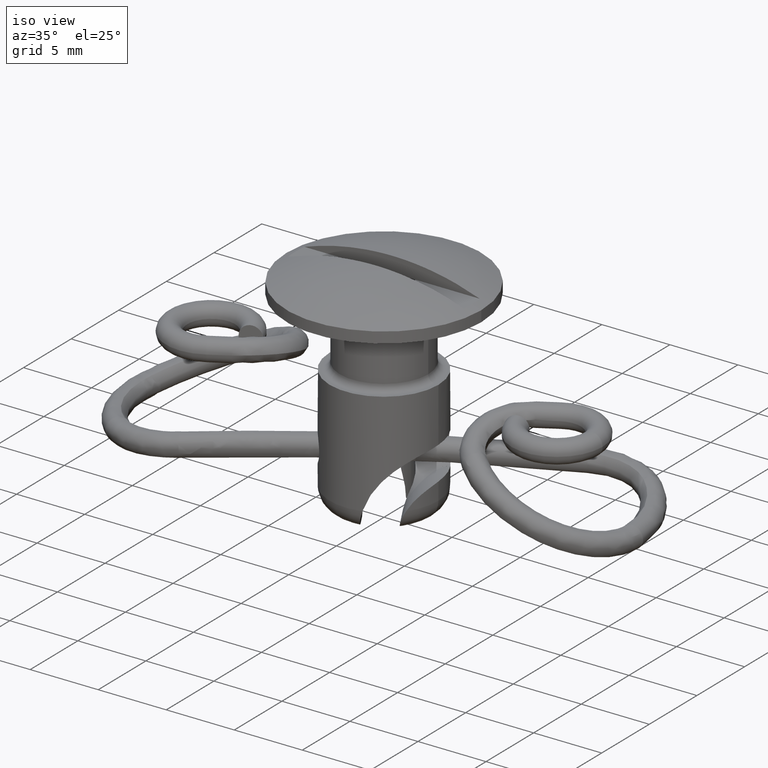
[diagram: clean part render]
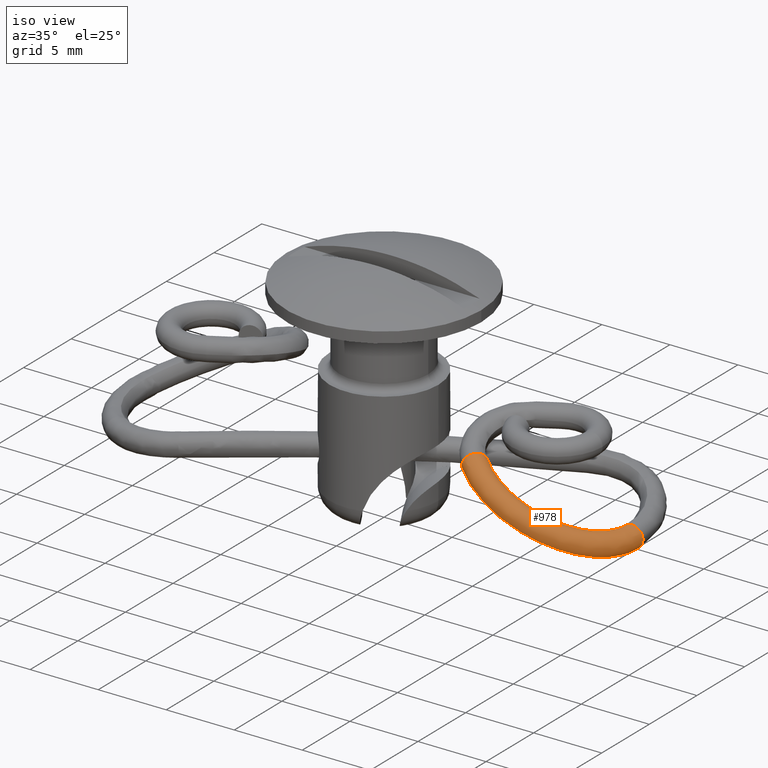
[diagram: same view with one face highlighted and labeled with its STEP entity id]
A machine part, iso view. The second image highlights one B-rep face of the part: STEP entity #978.
In plain terms, the highlighted face is a freeform B-spline surface patch.
Its self-contained STEP definition (entity closure, byte-faithful):
#14 = ORIENTED_EDGE ( 'NONE', *, *, #5541, .T. ) ;
#24 = CARTESIAN_POINT ( 'NONE',  ( 8.780062192003130800, -4.317727865166364900, 2.568071499838299900 ) ) ;
#75 = CARTESIAN_POINT ( 'NONE',  ( 8.781649363514839400, -4.519845964994680700, 2.934957569900285000 ) ) ;
#102 = CARTESIAN_POINT ( 'NONE',  ( 18.11631761478035000, -2.795201206161194800, -1.466738790936256100 ) ) ;
#108 = CARTESIAN_POINT ( 'NONE',  ( 11.58827637995463000, -4.430807974684300100, 2.503462905728892600 ) ) ;
#111 = ORIENTED_EDGE ( 'NONE', *, *, #2562, .F. ) ;
#131 = CARTESIAN_POINT ( 'NONE',  ( 9.436831021696889400, -5.043202281176259100, 2.866666053095930300 ) ) ;
#157 = CARTESIAN_POINT ( 'NONE',  ( 18.88812881465965200, -0.5715307264622360200, -1.590026137846705100 ) ) ;
#189 = CARTESIAN_POINT ( 'NONE',  ( 11.69165942749405900, -5.931369774369089900, 2.262520835116689900 ) ) ;
#223 = CARTESIAN_POINT ( 'NONE',  ( 19.03496547813765400, 0.2173288944170520000, -1.200162856425685900 ) ) ;
#232 = CARTESIAN_POINT ( 'NONE',  ( 9.564184269184053700, -4.325703299260036200, 3.717064570470343100 ) ) ;
#255 = CARTESIAN_POINT ( 'NONE',  ( 17.47219626882215200, -4.170547358197150200, -0.2476289060670410200 ) ) ;
#271 = CARTESIAN_POINT ( 'NONE',  ( 17.77303844508919900, -2.669064995074965200, -1.672502431744574900 ) ) ;
#285 = CARTESIAN_POINT ( 'NONE',  ( 9.827491460989390900, -4.457881071612675300, 3.638812515008940100 ) ) ;
#286 = CARTESIAN_POINT ( 'NONE',  ( 10.07893380206260900, -5.312875357627859800, 2.139415083463025000 ) ) ;
#289 = CARTESIAN_POINT ( 'NONE',  ( 9.025699226951383400, -4.677013981602360800, 3.135600348002081100 ) ) ;
#308 = CARTESIAN_POINT ( 'NONE',  ( 9.362599510556791000, -4.886075817539535600, 2.477197419073545100 ) ) ;
#321 = CARTESIAN_POINT ( 'NONE',  ( 18.73129203574779900, -1.050933361514329900, -0.5597112602968019600 ) ) ;
#326 = VERTEX_POINT ( 'NONE', #8020 ) ;
#332 = CARTESIAN_POINT ( 'NONE',  ( 13.45150496205429900, -4.866893238254649000, 1.808687976818500000 ) ) ;
#341 = CARTESIAN_POINT ( 'NONE',  ( 18.55725133654912500, -0.5524658281846465100, -1.858475193194117500 ) ) ;
#353 = CARTESIAN_POINT ( 'NONE',  ( 11.53630134593819900, -5.139438598345240200, 2.897315151924699800 ) ) ;
#362 = CARTESIAN_POINT ( 'NONE',  ( 9.894275310618320800, -3.309946215111129900, 3.118439805718785000 ) ) ;
#382 = CARTESIAN_POINT ( 'NONE',  ( 18.65205121670135200, 0.1487088313577580000, -0.4580660429573820100 ) ) ;
#391 = CARTESIAN_POINT ( 'NONE',  ( 17.18354352182745300, -2.040140177454124800, -0.3187627273318799900 ) ) ;
#417 = CARTESIAN_POINT ( 'NONE',  ( 16.22404656080150100, -4.111535510048384800, 0.6260316514131198900 ) ) ;
#427 = CARTESIAN_POINT ( 'NONE',  ( 10.31625565839882000, -3.653134486922585000, 2.678803246874720000 ) ) ;
#447 = CARTESIAN_POINT ( 'NONE',  ( 9.993659699574669400, -3.595008961993019900, 3.439210294108335100 ) ) ;
#456 = CARTESIAN_POINT ( 'NONE',  ( 17.49706121835645300, -0.4028710524477210300, -0.7072544951175380200 ) ) ;
#484 = CARTESIAN_POINT ( 'NONE',  ( 11.71131850759872100, -4.427533768981375000, 1.561868226957600100 ) ) ;
#513 = CARTESIAN_POINT ( 'NONE',  ( 17.38335823972329700, 0.2140562158000570100, -1.112741729750788000 ) ) ;
#523 = CARTESIAN_POINT ( 'NONE',  ( 16.16204646136692300, -4.920299139859555000, -0.7290333856503243800 ) ) ;
#543 = CARTESIAN_POINT ( 'NONE',  ( 16.20759369619960200, -3.208556896393495200, -0.7739395844471680400 ) ) ;
#563 = ORIENTED_EDGE ( 'NONE', *, *, #3483, .F. ) ;
#573 = CARTESIAN_POINT ( 'NONE',  ( 9.519053263266110700, -3.940631327956044300, 2.098358750086690300 ) ) ;
#600 = CARTESIAN_POINT ( 'NONE',  ( 17.51322128121735100, -0.9190317077442200500, -1.671234268685970000 ) ) ;
#629 = CARTESIAN_POINT ( 'NONE',  ( 10.89042963334027900, -4.942350280436048800, 1.387416212310760100 ) ) ;
#648 = VERTEX_POINT ( 'NONE', #4636 ) ;
#660 = CARTESIAN_POINT ( 'NONE',  ( 17.76653015966060100, 0.1493433068229064200, -1.854960040251084900 ) ) ;
#689 = CARTESIAN_POINT ( 'NONE',  ( 15.88245853123685200, -4.645180474620319800, -0.9057288602110750200 ) ) ;
#773 = CARTESIAN_POINT ( 'NONE',  ( 8.874165058154851200, -4.598312204465650600, 2.891332452707484600 ) ) ;
#800 = CARTESIAN_POINT ( 'NONE',  ( 18.60022156354995100, -1.427047051748896000, -1.694920253089235100 ) ) ;
#806 = CARTESIAN_POINT ( 'NONE',  ( 13.37489291541675000, -4.737806591850224800, 1.660996597268407500 ) ) ;
#833 = CARTESIAN_POINT ( 'NONE',  ( 10.17312869136646100, -5.481893865752599700, 2.519470128630655100 ) ) ;
#865 = CARTESIAN_POINT ( 'NONE',  ( 18.90785785832205300, 0.08981964600797288900, -1.599329227935805100 ) ) ;
#899 = CARTESIAN_POINT ( 'NONE',  ( 14.51793191932220000, -5.983439189764760100, 0.9298121616929939700 ) ) ;
#929 = CARTESIAN_POINT ( 'NONE',  ( 9.245026025258679800, -4.475136692227595200, 3.631834653461460100 ) ) ;
#935 = CARTESIAN_POINT ( 'NONE',  ( 9.861286593745306900, -3.946338249192048700, 3.676323621299574500 ) ) ;
#949 = CARTESIAN_POINT ( 'NONE',  ( 8.873637135294542200, -4.397092286431814900, 2.523946901484639800 ) ) ;
#961 = CARTESIAN_POINT ( 'NONE',  ( 18.61913621210095100, -2.219084832757709500, -0.7884602713102890600 ) ) ;
#962 = CARTESIAN_POINT ( 'NONE',  ( 8.830683068544505700, -4.461045189560164400, 2.728018830617427800 ) ) ;
#978 = ADVANCED_FACE ( 'NONE', ( #3362 ), #6895, .F. ) ;
#980 = CARTESIAN_POINT ( 'NONE',  ( 18.23539739839199900, -1.361668929736952000, -1.890524504663940100 ) ) ;
#994 = CARTESIAN_POINT ( 'NONE',  ( 10.49560772450319800, -4.901239438538420100, 3.323767047236100100 ) ) ;
#995 = CARTESIAN_POINT ( 'NONE',  ( 11.37521486906975800, -5.803192151850284500, 1.528162974477281800 ) ) ;
#998 = CARTESIAN_POINT ( 'NONE',  ( 8.946154350915504600, -4.629538728413591800, 2.856882230685030300 ) ) ;
#1013 = CARTESIAN_POINT ( 'NONE',  ( 10.07893380206260900, -5.312875357627859800, 2.139415083463025000 ) ) ;
#1027 = CARTESIAN_POINT ( 'NONE',  ( 18.82487832302294700, -0.2435431176839470100, -0.6038412078246989700 ) ) ;
#1035 = CARTESIAN_POINT ( 'NONE',  ( 16.07880370441879900, -3.945107489066964800, 0.5698039584667230500 ) ) ;
#1045 = CARTESIAN_POINT ( 'NONE',  ( 18.57632441827422600, 0.08813353473651099100, -1.867468969101574900 ) ) ;
#1056 = CARTESIAN_POINT ( 'NONE',  ( 13.55039402762180100, -5.485408729713230800, 1.947584086105385000 ) ) ;
#1069 = CARTESIAN_POINT ( 'NONE',  ( 9.993131776714479400, -3.393789043959170000, 3.071824742885454800 ) ) ;
#1090 = CARTESIAN_POINT ( 'NONE',  ( 9.836610082201691100, -3.666806934585699700, 3.637981851049390000 ) ) ;
#1100 = CARTESIAN_POINT ( 'NONE',  ( 17.53847765160034600, -1.035689961781412100, -0.4861293894672760200 ) ) ;
#1121 = CARTESIAN_POINT ( 'NONE',  ( 17.72917119510819700, -2.262846718736249800, -0.08369915498410959700 ) ) ;
#1131 = CARTESIAN_POINT ( 'NONE',  ( 10.87594117224710100, -3.986620003151799500, 2.414887527193870100 ) ) ;
#1135 = CARTESIAN_POINT ( 'NONE',  ( 18.85333197097999800, 0.03759310922161381000, -1.659455252631069100 ) ) ;
#1152 = CARTESIAN_POINT ( 'NONE',  ( 10.39993736252580100, -3.918142314914464700, 3.247632954414494800 ) ) ;
#1161 = CARTESIAN_POINT ( 'NONE',  ( 17.51098746618039900, 0.07489934514568008500, -0.7138213181390390400 ) ) ;
#1192 = CARTESIAN_POINT ( 'NONE',  ( 13.94136800646070100, -4.466624897933460400, 0.5103042613842180300 ) ) ;
#1219 = CARTESIAN_POINT ( 'NONE',  ( 9.526586801268921400, -3.435808128220319400, 2.376441655095284900 ) ) ;
#1226 = CARTESIAN_POINT ( 'NONE',  ( 17.94467802993477400, -2.732133100618080200, -1.569620611340415600 ) ) ;
#1247 = CARTESIAN_POINT ( 'NONE',  ( 17.09897446999989900, -1.691827348828850000, -1.194263842635901800 ) ) ;
#1279 = CARTESIAN_POINT ( 'NONE',  ( 10.10875844442312000, -4.330104150870215400, 1.820287469994804800 ) ) ;
#1305 = CARTESIAN_POINT ( 'NONE',  ( 17.59516673389165200, -0.2281081711564125200, -1.709875063529134900 ) ) ;
#1307 = VERTEX_POINT ( 'NONE', #4676 ) ;
#1336 = CARTESIAN_POINT ( 'NONE',  ( 12.84125530402391900, -5.277480880905120100, 0.4675182551332839900 ) ) ;
#1366 = CARTESIAN_POINT ( 'NONE',  ( 8.839314591931460200, -4.162985245520105500, 2.415415524569684900 ) ) ;
#1395 = CARTESIAN_POINT ( 'NONE',  ( 17.57068994149959800, -2.572494664879069400, -1.701802363284030000 ) ) ;
#1478 = CARTESIAN_POINT ( 'NONE',  ( 9.372049703543210000, -4.993957181894630900, 2.656558492591055000 ) ) ;
#1509 = CARTESIAN_POINT ( 'NONE',  ( 18.74291177894164700, -0.5655554815375699600, -1.762204808352160000 ) ) ;
#1514 = CARTESIAN_POINT ( 'NONE',  ( 15.94445863067052500, -3.836416844809859700, 0.4493361768521345100 ) ) ;
#1542 = CARTESIAN_POINT ( 'NONE',  ( 11.50426603408702100, -5.985391227582139700, 1.891781790971915000 ) ) ;
#1569 = CARTESIAN_POINT ( 'NONE',  ( 18.90760755028710000, 0.2174468964387579800, -1.599211196963874900 ) ) ;
#1599 = CARTESIAN_POINT ( 'NONE',  ( 17.46086472755805000, -4.253667126265785500, -0.4579068534351379800 ) ) ;
#1627 = CARTESIAN_POINT ( 'NONE',  ( 9.541333371743011300, -4.726417156071340400, 3.492113033624680200 ) ) ;
#1639 = CARTESIAN_POINT ( 'NONE',  ( 10.02473979802025600, -3.598503765916280600, 3.382692751455009400 ) ) ;
#1653 = CARTESIAN_POINT ( 'NONE',  ( 9.353149317570368400, -4.778194453184440200, 2.297836345556035100 ) ) ;
#1665 = CARTESIAN_POINT ( 'NONE',  ( 18.91737836621490100, -1.119410416433910000, -0.9290942359116890500 ) ) ;
#1682 = CARTESIAN_POINT ( 'NONE',  ( 18.37159089415660100, -0.5393761748317230700, -1.954745578036075200 ) ) ;
#1693 = CARTESIAN_POINT ( 'NONE',  ( 11.45412345070425900, -5.348545371506800100, 2.871785780172705100 ) ) ;
#1694 = CARTESIAN_POINT ( 'NONE',  ( 14.15066896768294800, -5.854155055018175300, 0.2194173526002168600 ) ) ;
#1697 = CARTESIAN_POINT ( 'NONE',  ( 8.935824082008970500, -4.550186272890416100, 2.678440334212210500 ) ) ;
#1715 = CARTESIAN_POINT ( 'NONE',  ( 11.37521486906975800, -5.803192151850284500, 1.528162974477281800 ) ) ;
#1728 = CARTESIAN_POINT ( 'NONE',  ( 18.82413428035395200, 0.1480374744727743800, -0.6034903598007860200 ) ) ;
#1737 = CARTESIAN_POINT ( 'NONE',  ( 17.52682269151949900, -2.166276388540805600, -0.1129990865231149900 ) ) ;
#1747 = CARTESIAN_POINT ( 'NONE',  ( 18.57607174013603000, 0.2170507004630085100, -1.867349820524445000 ) ) ;
#1762 = CARTESIAN_POINT ( 'NONE',  ( 16.45431907199070000, -4.465895716413299100, 0.5782589043329029500 ) ) ;
#1773 = CARTESIAN_POINT ( 'NONE',  ( 10.38103697655295900, -3.702379586204219900, 2.888910807379710300 ) ) ;
#1794 = CARTESIAN_POINT ( 'NONE',  ( 9.933596333625441600, -3.749063930242645200, 3.592248674630855300 ) ) ;
#1804 = CARTESIAN_POINT ( 'NONE',  ( 17.64227825407400400, -0.4088462973724970000, -0.5350758246116490400 ) ) ;
#1825 = CARTESIAN_POINT ( 'NONE',  ( 18.12214523577080200, -1.151121732397420100, -0.2690032662950779800 ) ) ;
#1837 = CARTESIAN_POINT ( 'NONE',  ( 11.89871190100525800, -4.373512315767845500, 1.932607271102135100 ) ) ;
#1840 = CARTESIAN_POINT ( 'NONE',  ( 19.02609183918544400, 0.04109782329686984000, -1.175164811744260800 ) ) ;
#1855 = CARTESIAN_POINT ( 'NONE',  ( 10.99329289741040000, -4.271684811738859700, 2.967840376009100100 ) ) ;
#1864 = CARTESIAN_POINT ( 'NONE',  ( 17.51071616757385000, 0.2139382137783514800, -0.7136933892126030600 ) ) ;
#1896 = CARTESIAN_POINT ( 'NONE',  ( 16.21892523746550200, -3.125437128325304800, -0.5636616370781699600 ) ) ;
#1923 = CARTESIAN_POINT ( 'NONE',  ( 9.805211352512500900, -3.672095243497210100, 2.245058231471179800 ) ) ;
#1932 = CARTESIAN_POINT ( 'NONE',  ( 18.41780948097097300, -1.394357990742924000, -1.792722378876587600 ) ) ;
#1956 = CARTESIAN_POINT ( 'NONE',  ( 17.32713495075019900, -0.8505546528247489600, -1.301851293070861900 ) ) ;
#1984 = CARTESIAN_POINT ( 'NONE',  ( 10.97260752857421900, -4.733243507274730500, 1.412945584062517800 ) ) ;
#2010 = CARTESIAN_POINT ( 'NONE',  ( 17.59444709600800000, 0.1500146637079115000, -1.709535723407684900 ) ) ;
#2035 = CARTESIAN_POINT ( 'NONE',  ( 15.65218602004764900, -4.290820268255399300, -0.8579561131303820000 ) ) ;
#2064 = CARTESIAN_POINT ( 'NONE',  ( 8.933700501243780700, -4.243037318182175900, 2.370908520962120100 ) ) ;
#2096 = CARTESIAN_POINT ( 'NONE',  ( 18.01655397937905100, -1.311615281132890100, -1.912046376261434800 ) ) ;
#2152 = CARTESIAN_POINT ( 'NONE',  ( 18.41780948097097300, -1.394357990742924000, -1.792722378876587600 ) ) ;
#2180 = CARTESIAN_POINT ( 'NONE',  ( 10.10209063792159900, -5.428921658090059700, 2.312312887110745200 ) ) ;
#2209 = CARTESIAN_POINT ( 'NONE',  ( 18.76243522707054700, 0.08929129806816078800, -1.771410951331025000 ) ) ;
#2214 = CARTESIAN_POINT ( 'NONE',  ( 17.35518310667347600, -2.103208282997465400, -0.2158809069274975100 ) ) ;
#2236 = CARTESIAN_POINT ( 'NONE',  ( 14.35195627577102200, -6.037926664592260000, 0.5489737300752569600 ) ) ;
#2265 = CARTESIAN_POINT ( 'NONE',  ( 9.100099568797201500, -4.564939166112520000, 3.484552437297465200 ) ) ;
#2299 = CARTESIAN_POINT ( 'NONE',  ( 18.62988595808520000, -2.264641805980114800, -1.009150492486458300 ) ) ;
#2331 = CARTESIAN_POINT ( 'NONE',  ( 10.25015762597222000, -5.197750608867240300, 3.157872002628099800 ) ) ;
#2350 = CARTESIAN_POINT ( 'NONE',  ( 10.05577696620362000, -5.196829057165659900, 1.966517279815304800 ) ) ;
#2361 = CARTESIAN_POINT ( 'NONE',  ( 19.01700793829284900, -0.2515552761088120100, -0.9760738513671930500 ) ) ;
#2365 = CARTESIAN_POINT ( 'NONE',  ( 9.068945223167769900, -4.669412517897339600, 3.222273710223130000 ) ) ;
#2381 = CARTESIAN_POINT ( 'NONE',  ( 18.39021360947790000, 0.08697577140486119400, -1.963526986872125000 ) ) ;
#2393 = CARTESIAN_POINT ( 'NONE',  ( 13.53534108608536000, -5.706015383758249900, 1.890402420296714900 ) ) ;
#2394 = CARTESIAN_POINT ( 'NONE',  ( 17.03688906193669800, -4.157503178618087600, -1.141559185985394200 ) ) ;
#2416 = CARTESIAN_POINT ( 'NONE',  ( 14.15066896768294800, -5.854155055018175300, 0.2194173526002168600 ) ) ;
#2428 = CARTESIAN_POINT ( 'NONE',  ( 9.631469113016880400, -3.996286676008984800, 3.795525230950620000 ) ) ;
#2438 = CARTESIAN_POINT ( 'NONE',  ( 17.90330181675830100, -1.101068083793574000, -0.2905251378927920500 ) ) ;
#2458 = CARTESIAN_POINT ( 'NONE',  ( 18.08103359619969900, -2.468465128181485100, -0.1888067490565349900 ) ) ;
#2468 = CARTESIAN_POINT ( 'NONE',  ( 10.94697922569220000, -4.039592210814345400, 2.622044768713539800 ) ) ;
#2493 = CARTESIAN_POINT ( 'NONE',  ( 10.35394004492970100, -4.083331313553064700, 3.394038589971615200 ) ) ;
#2503 = CARTESIAN_POINT ( 'NONE',  ( 17.65641009743205500, 0.07542769308549220100, -0.5417395947437619900 ) ) ;
#2525 = CARTESIAN_POINT ( 'NONE',  ( 18.23741645603495000, -0.4550684580682560200, -0.3233585896000745200 ) ) ;
#2536 = CARTESIAN_POINT ( 'NONE',  ( 14.10734365001092000, -4.412137423106425000, 0.8911426930024299900 ) ) ;
#2540 = CARTESIAN_POINT ( 'NONE',  ( 18.87591878499531400, 0.03455359538997644600, -0.6833617208777736900 ) ) ;
#2562 = EDGE_CURVE ( 'NONE', #648, #3708, #8315, .T. ) ;
#2566 = CARTESIAN_POINT ( 'NONE',  ( 9.671513257730488500, -3.346005654335375100, 2.523723871259244700 ) ) ;
#2598 = CARTESIAN_POINT ( 'NONE',  ( 17.08822472401565000, -1.646270375606665000, -0.9735736214601740100 ) ) ;
#2606 = CARTESIAN_POINT ( 'NONE',  ( 9.367020464560521700, -4.888854269836566700, 2.475112749685645800 ) ) ;
#2625 = CARTESIAN_POINT ( 'NONE',  ( 10.35420854295410100, -4.033592980541520500, 1.986182514602800000 ) ) ;
#2634 = CARTESIAN_POINT ( 'NONE',  ( 18.55725133654912500, -0.5524658281846465100, -1.858475193194117500 ) ) ;
#2658 = CARTESIAN_POINT ( 'NONE',  ( 17.40303711862174700, -0.2200960127316020100, -1.337642419986858000 ) ) ;
#2685 = CARTESIAN_POINT ( 'NONE',  ( 12.85630824556035800, -5.056874226860579700, 0.5246999209419539500 ) ) ;
#2717 = CARTESIAN_POINT ( 'NONE',  ( 9.044455561116279800, -3.833505504096820000, 2.257872144668450000 ) ) ;
#2747 = CARTESIAN_POINT ( 'NONE',  ( 17.21882754040810000, -2.366876255433834500, -1.596694769210700100 ) ) ;
#2782 = CARTESIAN_POINT ( 'NONE',  ( 9.399146635166250300, -4.613005454545719500, 2.151430709999029700 ) ) ;
#2807 = CARTESIAN_POINT ( 'NONE',  ( 18.14777357698070000, -0.5193333208418109400, -1.973922043363955000 ) ) ;
#2849 = EDGE_CURVE ( 'NONE', #6100, #648, #4107, .T. ) ;
#2862 = CARTESIAN_POINT ( 'NONE',  ( 18.55725133654912500, -0.5524658281846465100, -1.858475193194117500 ) ) ;
#2888 = CARTESIAN_POINT ( 'NONE',  ( 11.42230364906131800, -5.928288065628939800, 1.689775840239690100 ) ) ;
#2893 = CARTESIAN_POINT ( 'NONE',  ( 10.03471448536588500, -3.529438264463209400, 3.236033957390875000 ) ) ;
#2907 = CARTESIAN_POINT ( 'NONE',  ( 18.13976918009843000, 0.01046291130278924900, -0.3459945026737674700 ) ) ;
#2918 = CARTESIAN_POINT ( 'NONE',  ( 18.76218417683410100, 0.2173228220556049900, -1.771292570379385100 ) ) ;
#2923 = CARTESIAN_POINT ( 'NONE',  ( 17.72088973417932700, -1.068379022787493200, -0.3883272636800340100 ) ) ;
#2944 = CARTESIAN_POINT ( 'NONE',  ( 17.31879085470370000, -4.294195518792555800, -0.8500159948700659600 ) ) ;
#2975 = CARTESIAN_POINT ( 'NONE',  ( 9.397934785802441100, -4.817515112260239500, 3.344110360993264800 ) ) ;
#3000 = CARTESIAN_POINT ( 'NONE',  ( 18.93418340876809900, -1.142640391826176000, -1.152639789077382100 ) ) ;
#3034 = CARTESIAN_POINT ( 'NONE',  ( 11.25782056757650000, -5.667985897436150100, 2.682715716017735300 ) ) ;
#3056 = CARTESIAN_POINT ( 'NONE',  ( 11.32812608907820000, -5.678096238071630000, 1.366550108714873900 ) ) ;
#3068 = CARTESIAN_POINT ( 'NONE',  ( 19.01625120069410000, 0.1470120475372337900, -0.9757170171392259800 ) ) ;
#3086 = CARTESIAN_POINT ( 'NONE',  ( 18.38995930343795100, 0.2167785788704120200, -1.963407070669504800 ) ) ;
#3099 = CARTESIAN_POINT ( 'NONE',  ( 16.53793074719260000, -4.651645810923029400, 0.4745526408889340100 ) ) ;
#3120 = CARTESIAN_POINT ( 'NONE',  ( 17.03688906193669800, -4.157503178618087600, -1.141559185985394200 ) ) ;
#3131 = CARTESIAN_POINT ( 'NONE',  ( 9.726728646387998700, -4.077079517868364500, 3.750606276137354600 ) ) ;
#3142 = CARTESIAN_POINT ( 'NONE',  ( 18.01359913885904600, -0.4350256040784539800, -0.3425350549277340100 ) ) ;
#3161 = CARTESIAN_POINT ( 'NONE',  ( 18.50912874574029800, -1.257696312268856000, -0.3906719692336040300 ) ) ;
#3175 = CARTESIAN_POINT ( 'NONE',  ( 11.98067428603194200, -4.430615477721289600, 2.134613221834840100 ) ) ;
#3198 = CARTESIAN_POINT ( 'NONE',  ( 10.96828332384029800, -4.449376017589494300, 3.104349390281385000 ) ) ;
#3208 = CARTESIAN_POINT ( 'NONE',  ( 17.65613954102685000, 0.2140622881615044900, -0.5416120157970929500 ) ) ;
#3228 = CARTESIAN_POINT ( 'NONE',  ( 18.25313862291140100, 0.07951613984645369800, -0.3307722654655179700 ) ) ;
#3236 = CARTESIAN_POINT ( 'NONE',  ( 16.36099911031984900, -3.084908735798539900, -0.1715524956432419900 ) ) ;
#3240 = CARTESIAN_POINT ( 'NONE',  ( 18.46180613581712000, 0.02054402708922505700, -0.3785009610710362000 ) ) ;
#3264 = CARTESIAN_POINT ( 'NONE',  ( 9.948609938453289600, -3.580997287308475200, 2.393060904102365200 ) ) ;
#3295 = CARTESIAN_POINT ( 'NONE',  ( 17.31032990819790000, -0.8273246774324849500, -1.078305739905389900 ) ) ;
#3304 = CARTESIAN_POINT ( 'NONE',  ( 10.07893380206260900, -5.312875357627859800, 2.139415083463025000 ) ) ;
#3325 = CARTESIAN_POINT ( 'NONE',  ( 11.16891041170196000, -4.413802981345145100, 1.602015648217015100 ) ) ;
#3332 = CARTESIAN_POINT ( 'NONE',  ( 18.57645014878133000, 0.02134302443070191700, -1.867528256427239500 ) ) ;
#3356 = CARTESIAN_POINT ( 'NONE',  ( 17.40233017566785300, 0.1510400906434410100, -1.337309066069241900 ) ) ;
#3362 = FACE_OUTER_BOUND ( 'NONE', #5007, .T. ) ;
#3384 = CARTESIAN_POINT ( 'NONE',  ( 15.56857434484485100, -4.105070173746620200, -0.7542498496873619700 ) ) ;
#3415 = CARTESIAN_POINT ( 'NONE',  ( 9.140568188481159600, -3.915021730556455200, 2.212550919455615000 ) ) ;
#3439 = CARTESIAN_POINT ( 'NONE',  ( 17.62957046940994800, -1.205040701261562000, -1.790377673322685000 ) ) ;
#3468 = CARTESIAN_POINT ( 'NONE',  ( 10.08078653977350000, -5.019137851315029800, 1.830008265543140000 ) ) ;
#3483 = EDGE_CURVE ( 'NONE', #3708, #5459, #4783, .T. ) ;
#3498 = CARTESIAN_POINT ( 'NONE',  ( 18.16570670159104800, 0.08520285130719940100, -1.982378280609210300 ) ) ;
#3551 = CARTESIAN_POINT ( 'NONE',  ( 18.57632441827422600, 0.08813353473651099100, -1.867468969101574900 ) ) ;
#3582 = CARTESIAN_POINT ( 'NONE',  ( 14.24735429455626000, -5.980330611251440100, 0.3576433197557860000 ) ) ;
#3587 = CARTESIAN_POINT ( 'NONE',  ( 10.39048716953938000, -3.810260950559342300, 3.068271880897102600 ) ) ;
#3612 = CARTESIAN_POINT ( 'NONE',  ( 8.892885763874430100, -4.608726421520599600, 3.123159567102579800 ) ) ;
#3616 = CARTESIAN_POINT ( 'NONE',  ( 17.82739948159164800, -0.4257519441569476700, -0.4385511768340971700 ) ) ;
#3641 = CARTESIAN_POINT ( 'NONE',  ( 18.49857866997734800, -2.286854772231174900, -1.406336540310590100 ) ) ;
#3674 = CARTESIAN_POINT ( 'NONE',  ( 10.12056878321888000, -5.298338788264129700, 3.003357443907690000 ) ) ;
#3704 = CARTESIAN_POINT ( 'NONE',  ( 19.03586308032579700, -0.2542732030045520300, -1.200586114347995900 ) ) ;
#3708 = VERTEX_POINT ( 'NONE', #4769 ) ;
#3714 = CARTESIAN_POINT ( 'NONE',  ( 9.140063730138708200, -4.656829187535846500, 3.365008833423170000 ) ) ;
#3736 = CARTESIAN_POINT ( 'NONE',  ( 13.44158116984965900, -6.043023564254549600, 1.652978950102225000 ) ) ;
#3755 = CARTESIAN_POINT ( 'NONE',  ( 14.05398364080964100, -5.727979498784910600, 0.08119138544464769800 ) ) ;
#3768 = CARTESIAN_POINT ( 'NONE',  ( 9.486843767531681200, -4.168994916655270400, 3.799442509804415100 ) ) ;
#3769 = CARTESIAN_POINT ( 'NONE',  ( 9.126750669215967400, -4.712122342666390300, 2.588410261211799800 ) ) ;
#3789 = CARTESIAN_POINT ( 'NONE',  ( 8.830683068544505700, -4.461045189560164400, 2.728018830617427800 ) ) ;
#3803 = CARTESIAN_POINT ( 'NONE',  ( 18.22838078389820300, -2.576247043663360000, -0.3225670396868040600 ) ) ;
#3820 = CARTESIAN_POINT ( 'NONE',  ( 18.18036361971190100, -2.211934920100380200, -1.680756473365027500 ) ) ;
#3833 = CARTESIAN_POINT ( 'NONE',  ( 10.17702194674974000, -4.435053582031554400, 3.538273675967640300 ) ) ;
#3844 = CARTESIAN_POINT ( 'NONE',  ( 18.02863171502454900, 0.07774321974880640800, -0.3496235592026629700 ) ) ;
#3865 = CARTESIAN_POINT ( 'NONE',  ( 18.63499041687964900, -0.4977437302619700500, -0.4500211442563260000 ) ) ;
#3873 = CARTESIAN_POINT ( 'NONE',  ( 14.21194563122664100, -4.469733476446294600, 1.082473103321426100 ) ) ;
#3892 = CARTESIAN_POINT ( 'NONE',  ( 12.08648709131088100, -4.872355331462220100, 2.577068364167969700 ) ) ;
#3904 = CARTESIAN_POINT ( 'NONE',  ( 9.878727062653229800, -3.302218398927365200, 2.885116741454140300 ) ) ;
#3923 = CARTESIAN_POINT ( 'NONE',  ( 18.25287381586335300, 0.2150233487902459800, -0.3306473975873134900 ) ) ;
#3931 = CARTESIAN_POINT ( 'NONE',  ( 17.21953201212259900, -1.624057409355605100, -0.5763875736360419800 ) ) ;
#3964 = CARTESIAN_POINT ( 'NONE',  ( 10.48379738570768000, -3.933004801144800200, 2.140697073322980000 ) ) ;
#3993 = CARTESIAN_POINT ( 'NONE',  ( 17.38418197658879900, -0.2173780858359164700, -1.113130157005836100 ) ) ;
#4000 = CARTESIAN_POINT ( 'NONE',  ( 11.37521486906975800, -5.803192151850284500, 1.528162974477281800 ) ) ;
#4023 = CARTESIAN_POINT ( 'NONE',  ( 12.95006816179704000, -4.719866046364270300, 0.7621233911369270600 ) ) ;
#4031 = CARTESIAN_POINT ( 'NONE',  ( 18.57643450339310900, 0.02979900296597102700, -1.867520541527739800 ) ) ;
#4052 = CARTESIAN_POINT ( 'NONE',  ( 9.189080906601470000, -3.660797263450535200, 2.253954865814659800 ) ) ;
#4080 = CARTESIAN_POINT ( 'NONE',  ( 17.07148035271049800, -2.259094339952409900, -1.462934478579984000 ) ) ;
#4107 = B_SPLINE_CURVE_WITH_KNOTS ( 'NONE', 3,
 ( #7902, #3714, #8611, #4413, #232, #5109, #935, #5799, #1639, #6510 ),
 .UNSPECIFIED., .F., .F.,
 ( 4, 2, 2, 2, 4 ),
 ( -4.714034727685035600E-005, 0.0004325374260194657800, 0.0009122151993157819400, 0.001391892972612098100, 0.001871570745908414400 ),
 .UNSPECIFIED. ) ;
#4110 = CARTESIAN_POINT ( 'NONE',  ( 9.576064733345969400, -4.261283186067350600, 2.007195624003125000 ) ) ;
#4139 = CARTESIAN_POINT ( 'NONE',  ( 17.75019961613555000, -0.4766580486480969700, -1.847259488707699800 ) ) ;
#4151 = ORIENTED_EDGE ( 'NONE', *, *, #7225, .T. ) ;
#4174 = CARTESIAN_POINT ( 'NONE',  ( 11.31649084378142000, -5.486548211888009300, 1.247320697906321800 ) ) ;
#4202 = CARTESIAN_POINT ( 'NONE',  ( 18.16544990199764700, 0.2163617614268635000, -1.982257188589159800 ) ) ;
#4256 = CARTESIAN_POINT ( 'NONE',  ( 18.57607174013603000, 0.2170507004630085100, -1.867349820524445000 ) ) ;
#4286 = CARTESIAN_POINT ( 'NONE',  ( 17.18892339025664700, -4.251354576188729700, -1.029432646434178100 ) ) ;
#4290 = CARTESIAN_POINT ( 'NONE',  ( 10.97013606155130100, -4.155638511276602100, 2.794942572361319900 ) ) ;
#4312 = CARTESIAN_POINT ( 'NONE',  ( 9.191465963996030600, -4.861934029875020400, 2.982366199313264900 ) ) ;
#4318 = CARTESIAN_POINT ( 'NONE',  ( 17.84263854455842900, 0.001926039864743255800, -0.4457457776627948300 ) ) ;
#4346 = CARTESIAN_POINT ( 'NONE',  ( 18.80582858345100000, -1.153966850631858100, -1.551218049712030000 ) ) ;
#4375 = CARTESIAN_POINT ( 'NONE',  ( 11.14490437999872100, -5.776352588882679700, 2.520339285441210100 ) ) ;
#4407 = CARTESIAN_POINT ( 'NONE',  ( 19.03510203352439900, 0.1466642918942223900, -1.200227248146221900 ) ) ;
#4413 = CARTESIAN_POINT ( 'NONE',  ( 9.449066138183653200, -4.439412544391604600, 3.667968000682199300 ) ) ;
#4438 = CARTESIAN_POINT ( 'NONE',  ( 16.59489510806205100, -4.935405532213310100, 0.1660562108238680100 ) ) ;
#4458 = CARTESIAN_POINT ( 'NONE',  ( 16.88485473361674800, -4.063651781047445500, -1.253685725536610100 ) ) ;
#4470 = CARTESIAN_POINT ( 'NONE',  ( 9.581198181712091300, -4.249020272127855200, 3.754950357502074600 ) ) ;
#4471 = CARTESIAN_POINT ( 'NONE',  ( 9.833407926899880600, -5.181966415981880100, 2.255191062009600100 ) ) ;
#4488 = CARTESIAN_POINT ( 'NONE',  ( 9.126750669215967400, -4.712122342666390300, 2.588410261211799800 ) ) ;
#4503 = CARTESIAN_POINT ( 'NONE',  ( 18.67488585697885000, -1.313560975101474100, -0.5331133282504330100 ) ) ;
#4513 = CARTESIAN_POINT ( 'NONE',  ( 12.07485184601459900, -4.680807305278589700, 2.457838953359894800 ) ) ;
#4521 = CARTESIAN_POINT ( 'NONE',  ( 18.47765537051122600, -1.115764075975209000, -1.820942282049655000 ) ) ;
#4534 = CARTESIAN_POINT ( 'NONE',  ( 10.83605256379321900, -4.827718096235619400, 3.227512480107789900 ) ) ;
#4544 = CARTESIAN_POINT ( 'NONE',  ( 18.02836441442300200, 0.2146065313466969900, -0.3494975155069710000 ) ) ;
#4568 = CARTESIAN_POINT ( 'NONE',  ( 18.65218084879995100, 0.08329124612432339800, -0.4581271700504319600 ) ) ;
#4579 = CARTESIAN_POINT ( 'NONE',  ( 16.49086657476684800, -3.127749678402365100, 0.007864155921768988700 ) ) ;
#4601 = CARTESIAN_POINT ( 'NONE',  ( 14.49289421336881900, -4.915285712103430300, 1.442344216858964000 ) ) ;
#4610 = CARTESIAN_POINT ( 'NONE',  ( 10.15507876025992000, -3.536578369693465200, 2.754805065782135500 ) ) ;
#4613 = CARTESIAN_POINT ( 'NONE',  ( 18.57643450339310900, 0.02979900296597102700, -1.867520541527739800 ) ) ;
#4634 = CARTESIAN_POINT ( 'NONE',  ( 9.942121092798951000, -3.551296009777289900, 3.463512957232629800 ) ) ;
#4636 = CARTESIAN_POINT ( 'NONE',  ( 10.02678988547606000, -3.522717870565996300, 3.239770746054020800 ) ) ;
#4641 = CARTESIAN_POINT ( 'NONE',  ( 17.43868473351415100, -0.8159982186268010000, -0.6797274792705210200 ) ) ;
#4669 = CARTESIAN_POINT ( 'NONE',  ( 11.28182659927974100, -4.305436289898379300, 1.764392078793539900 ) ) ;
#4676 = CARTESIAN_POINT ( 'NONE',  ( 8.935824082008970500, -4.550186272890416100, 2.678440334212210500 ) ) ;
#4697 = CARTESIAN_POINT ( 'NONE',  ( 17.38347934283755000, 0.1513878462864414700, -1.112798835062246000 ) ) ;
#4707 = CARTESIAN_POINT ( 'NONE',  ( 14.15066896768294800, -5.854155055018175300, 0.2194173526002168600 ) ) ;
#4729 = CARTESIAN_POINT ( 'NONE',  ( 15.51160998397630100, -3.821310452455864800, -0.4457534196227714900 ) ) ;
#4756 = CARTESIAN_POINT ( 'NONE',  ( 9.286098653157179000, -3.743080976296939700, 2.208206838090895000 ) ) ;
#4769 = CARTESIAN_POINT ( 'NONE',  ( 17.84263854455842900, 0.001926039864743255800, -0.4457457776627948300 ) ) ;
#4783 = B_SPLINE_CURVE_WITH_KNOTS ( 'NONE', 3,
 ( #4968, #5637, #2907, #7780 ),
 .UNSPECIFIED., .F., .F.,
 ( 4, 4 ),
 ( 0.002007330227173306100, 0.002468989556141994400 ),
 .UNSPECIFIED. ) ;
#4785 = CARTESIAN_POINT ( 'NONE',  ( 17.46381335817140000, -1.149176038428944000, -1.647936314306080100 ) ) ;
#4814 = CARTESIAN_POINT ( 'NONE',  ( 10.21301729982055800, -4.640795772668900200, 1.706845175716495100 ) ) ;
#4838 = CARTESIAN_POINT ( 'NONE',  ( 17.76666447570264800, 0.08142774502932970100, -1.855023376024294900 ) ) ;
#4862 = CARTESIAN_POINT ( 'NONE',  ( 13.96640571241311900, -5.534778375595260000, -0.002227793781753210000 ) ) ;
#4892 = CARTESIAN_POINT ( 'NONE',  ( 8.829491733728730200, -4.359648810670599900, 2.544763351324085000 ) ) ;
#4946 = CARTESIAN_POINT ( 'NONE',  ( 8.831874403360281200, -4.562441568449729700, 2.911274309910770100 ) ) ;
#4968 = CARTESIAN_POINT ( 'NONE',  ( 17.84263854455842900, 0.001926039864743255800, -0.4457457776627948300 ) ) ;
#4979 = CARTESIAN_POINT ( 'NONE',  ( 18.35733020420040200, -2.263373981530049800, -1.580386561719560000 ) ) ;
#4984 = CARTESIAN_POINT ( 'NONE',  ( 12.02776306602327100, -4.555711391499939600, 2.296226087597367500 ) ) ;
#4987 = B_SPLINE_CURVE_WITH_KNOTS ( 'NONE', 3,
 ( #4613, #8807, #1135, #6004, #1840, #6716, #2540, #7419, #3240, #8137 ),
 .UNSPECIFIED., .F., .F.,
 ( 4, 2, 2, 2, 4 ),
 ( 0.0004328497996708279400, 0.0009425783615012600400, 0.001452306923331692100, 0.001962035485162124000, 0.002471764046992556100 ),
 .UNSPECIFIED. ) ;
#5007 = EDGE_LOOP ( 'NONE', ( #111, #8003, #5599, #14, #4151, #563 ) ) ;
#5009 = CARTESIAN_POINT ( 'NONE',  ( 9.920833520305770000, -5.347385028976610500, 2.638438120467649500 ) ) ;
#5039 = CARTESIAN_POINT ( 'NONE',  ( 18.90850781632499900, -0.2555981236194560000, -1.599635711005210200 ) ) ;
#5069 = CARTESIAN_POINT ( 'NONE',  ( 13.36345155303020100, -6.157349850705300800, 1.474199159728714100 ) ) ;
#5102 = CARTESIAN_POINT ( 'NONE',  ( 9.195143455200440700, -4.432831535674950800, 3.655356424260844900 ) ) ;
#5109 = CARTESIAN_POINT ( 'NONE',  ( 9.769484091846370800, -4.079824168195907300, 3.720619469831075100 ) ) ;
#5135 = CARTESIAN_POINT ( 'NONE',  ( 18.38271019391904900, -2.740899175887854700, -0.6769752655418260800 ) ) ;
#5157 = CARTESIAN_POINT ( 'NONE',  ( 18.00339703522340100, -2.160495858670710100, -1.781126385010495000 ) ) ;
#5170 = CARTESIAN_POINT ( 'NONE',  ( 10.04719059821914100, -4.619421004979740200, 3.535214950875385000 ) ) ;
#5172 = CARTESIAN_POINT ( 'NONE',  ( 10.83845459932361000, -5.650980904097120400, 1.781268458506450000 ) ) ;
#5174 = CARTESIAN_POINT ( 'NONE',  ( 8.991845196904757000, -4.670229311752015300, 3.043033841916297400 ) ) ;
#5190 = CARTESIAN_POINT ( 'NONE',  ( 9.833407926899880600, -5.181966415981880100, 2.255191062009600100 ) ) ;
#5204 = CARTESIAN_POINT ( 'NONE',  ( 18.80629886660655000, -0.5201133612784359900, -0.5950801974168910000 ) ) ;
#5216 = CARTESIAN_POINT ( 'NONE',  ( 14.40531628497326000, -4.722084588913300100, 1.358925037633040200 ) ) ;
#5223 = CARTESIAN_POINT ( 'NONE',  ( 18.57696306427195100, -0.2511277398380292200, -1.867770118075867700 ) ) ;
#5234 = CARTESIAN_POINT ( 'NONE',  ( 12.03228088050399900, -5.280201460402440500, 2.663439533253465300 ) ) ;
#5245 = CARTESIAN_POINT ( 'NONE',  ( 9.939738423167350200, -3.348503251998115300, 3.097001998645965100 ) ) ;
#5269 = CARTESIAN_POINT ( 'NONE',  ( 18.65192135222220000, 0.2159110269056799800, -0.4580048062866780000 ) ) ;
#5277 = CARTESIAN_POINT ( 'NONE',  ( 17.36078047790039800, -1.647538200056950100, -0.4023375522266290400 ) ) ;
#5296 = CARTESIAN_POINT ( 'NONE',  ( 16.96726401967274700, -3.459158483666900300, 0.2755727496137380100 ) ) ;
#5304 = CARTESIAN_POINT ( 'NONE',  ( 10.68353264862078000, -3.883958560432204900, 2.505616396763255000 ) ) ;
#5327 = CARTESIAN_POINT ( 'NONE',  ( 10.22271051441932100, -3.789249181273104800, 3.331203012970144900 ) ) ;
#5333 = CARTESIAN_POINT ( 'NONE',  ( 17.51153724058960000, -0.2160531652210120100, -0.7140805603484080600 ) ) ;
#5365 = CARTESIAN_POINT ( 'NONE',  ( 13.02819777861650000, -4.605539759913050100, 0.9409031815099540000 ) ) ;
#5394 = CARTESIAN_POINT ( 'NONE',  ( 9.480781218932710500, -3.396960644430860200, 2.398040951358225000 ) ) ;
#5403 = CARTESIAN_POINT ( 'NONE',  ( 17.03688906193669800, -4.157503178618087600, -1.141559185985394200 ) ) ;
#5424 = CARTESIAN_POINT ( 'NONE',  ( 16.91715094268965200, -2.094442207727689600, -1.108526252725411800 ) ) ;
#5454 = CARTESIAN_POINT ( 'NONE',  ( 9.705896081876810300, -4.076915763119274900, 2.010254349095264900 ) ) ;
#5459 = VERTEX_POINT ( 'NONE', #6701 ) ;
#5479 = CARTESIAN_POINT ( 'NONE',  ( 17.57889116640954800, -0.4542884176316310300, -1.702200435547135200 ) ) ;
#5504 = CARTESIAN_POINT ( 'NONE',  ( 11.37069705458925900, -5.078702082948029600, 1.160949528820828000 ) ) ;
#5538 = CARTESIAN_POINT ( 'NONE',  ( 17.76640236563875100, 0.2154740833114290000, -1.854899779889795000 ) ) ;
#5541 = EDGE_CURVE ( 'NONE', #1307, #326, #6503, .T. ) ;
#5570 = CARTESIAN_POINT ( 'NONE',  ( 16.71252594535080100, -3.919945770924194500, -1.297141240126148000 ) ) ;
#5599 = ORIENTED_EDGE ( 'NONE', *, *, #5633, .T. ) ;
#5633 = EDGE_CURVE ( 'NONE', #6100, #1307, #8157, .T. ) ;
#5637 = CARTESIAN_POINT ( 'NONE',  ( 17.97939379450307500, 0.005759480345046339600, -0.3751623621184372900 ) ) ;
#5645 = CARTESIAN_POINT ( 'NONE',  ( 9.129667128595532000, -4.814981467037340800, 2.770852270298115100 ) ) ;
#5651 = CARTESIAN_POINT ( 'NONE',  ( 10.02678988547606000, -3.522717870565996300, 3.239770746054020800 ) ) ;
#5676 = CARTESIAN_POINT ( 'NONE',  ( 18.66145910312459900, -1.141993587606712000, -1.723796378928835100 ) ) ;
#5681 = CARTESIAN_POINT ( 'NONE',  ( 14.30863095809994900, -4.595909032679796400, 1.220699070477232900 ) ) ;
#5701 = CARTESIAN_POINT ( 'NONE',  ( 10.95329860747600000, -5.829191525252570100, 2.151586558681080100 ) ) ;
#5730 = CARTESIAN_POINT ( 'NONE',  ( 18.90774466075614800, 0.1464950502275962100, -1.599275850429535000 ) ) ;
#5759 = CARTESIAN_POINT ( 'NONE',  ( 16.56789701672325100, -5.031667814098060600, -0.03683428638694399800 ) ) ;
#5793 = CARTESIAN_POINT ( 'NONE',  ( 9.288115169943900200, -4.511684446784149900, 3.611516274034595400 ) ) ;
#5799 = CARTESIAN_POINT ( 'NONE',  ( 9.988372389005359500, -3.705065714509523400, 3.504891535640870100 ) ) ;
#5811 = CARTESIAN_POINT ( 'NONE',  ( 9.123834209836401100, -4.609263218295439800, 2.405968252125485000 ) ) ;
#5824 = CARTESIAN_POINT ( 'NONE',  ( 18.85733902003400100, -1.398902069347781800, -0.9007831096370110300 ) ) ;
#5846 = CARTESIAN_POINT ( 'NONE',  ( 18.29385163789784800, -1.089534564343706000, -1.918088185170475000 ) ) ;
#5859 = CARTESIAN_POINT ( 'NONE',  ( 10.72964563221640000, -5.026039201801519400, 3.213408137958200200 ) ) ;
#5860 = CARTESIAN_POINT ( 'NONE',  ( 13.01675641622947800, -6.025083018768600400, 0.7541057439695395500 ) ) ;
#5862 = CARTESIAN_POINT ( 'NONE',  ( 8.934625946836300500, -4.596302382433535200, 2.765295264495334100 ) ) ;
#5879 = CARTESIAN_POINT ( 'NONE',  ( 10.83845459932361000, -5.650980904097120400, 1.781268458506450000 ) ) ;
#5893 = CARTESIAN_POINT ( 'NONE',  ( 18.82425893152824900, 0.08527018583159229300, -0.6035491381745140500 ) ) ;
#5904 = CARTESIAN_POINT ( 'NONE',  ( 16.79493523140499900, -3.315452473542745100, 0.2321172350233000100 ) ) ;
#5912 = CARTESIAN_POINT ( 'NONE',  ( 18.57620697846562800, 0.1470676479034892000, -1.867413591196062800 ) ) ;
#5924 = CARTESIAN_POINT ( 'NONE',  ( 14.60038597091129900, -5.326651552661250100, 1.452467860087538000 ) ) ;
#5932 = CARTESIAN_POINT ( 'NONE',  ( 10.21687759565973900, -3.583530932531265200, 2.966318994797629800 ) ) ;
#5956 = CARTESIAN_POINT ( 'NONE',  ( 9.883477729835339800, -3.706555150607385100, 3.615881745456234900 ) ) ;
#5970 = CARTESIAN_POINT ( 'NONE',  ( 17.58305421384100200, -0.8279714816518369800, -0.5071491500541549500 ) ) ;
#5987 = CARTESIAN_POINT ( 'NONE',  ( 17.92521888883024800, -1.829180148803454900, -0.1761440493043144900 ) ) ;
#5999 = CARTESIAN_POINT ( 'NONE',  ( 11.47343237180293900, -4.252597353528959600, 2.133144805553905100 ) ) ;
#6004 = CARTESIAN_POINT ( 'NONE',  ( 19.00330882176540800, 0.04107925566743556000, -1.354800179664691100 ) ) ;
#6024 = CARTESIAN_POINT ( 'NONE',  ( 10.78946735160865900, -4.162951829191700700, 3.063952861107805100 ) ) ;
#6032 = CARTESIAN_POINT ( 'NONE',  ( 17.51083671560580200, 0.1515570879530679900, -0.7137502327789350100 ) ) ;
#6056 = CARTESIAN_POINT ( 'NONE',  ( 15.53860807531419900, -3.725048170571115100, -0.2428629224110090100 ) ) ;
#6085 = CARTESIAN_POINT ( 'NONE',  ( 9.579181664925368300, -3.480416801640684900, 2.351640921558320100 ) ) ;
#6092 = CARTESIAN_POINT ( 'NONE',  ( 18.18036361971190100, -2.211934920100380200, -1.680756473365027500 ) ) ;
#6100 = VERTEX_POINT ( 'NONE', #8239 ) ;
#6116 = CARTESIAN_POINT ( 'NONE',  ( 17.28136019511625300, -1.063834944182745900, -1.280266532919500000 ) ) ;
#6147 = CARTESIAN_POINT ( 'NONE',  ( 10.31942423139740100, -4.442474667102884700, 1.720949517866204900 ) ) ;
#6164 = CARTESIAN_POINT ( 'NONE',  ( 8.780855777758985100, -4.418786915080522300, 2.751514534869292600 ) ) ;
#6172 = CARTESIAN_POINT ( 'NONE',  ( 17.59458639297420000, 0.07944880532203139900, -1.709601407900275000 ) ) ;
#6202 = CARTESIAN_POINT ( 'NONE',  ( 13.85891395487065800, -5.123412535037440200, -0.01235143701079951900 ) ) ;
#6235 = CARTESIAN_POINT ( 'NONE',  ( 8.888135096692339600, -4.204389669840510100, 2.392394563100479900 ) ) ;
#6261 = CARTESIAN_POINT ( 'NONE',  ( 17.79289179327145100, -2.081732032783549800, -1.806580064641880100 ) ) ;
#6318 = CARTESIAN_POINT ( 'NONE',  ( 18.18036361971190100, -2.211934920100380200, -1.680756473365027500 ) ) ;
#6346 = CARTESIAN_POINT ( 'NONE',  ( 9.851917036482341000, -5.295541071746710000, 2.430280467895984800 ) ) ;
#6352 = CARTESIAN_POINT ( 'NONE',  ( 10.03077461211847600, -3.526097108331509100, 3.237891776572921400 ) ) ;
#6373 = CARTESIAN_POINT ( 'NONE',  ( 18.76308164270174600, -0.2541969586991155200, -1.771715764020710200 ) ) ;
#6379 = CARTESIAN_POINT ( 'NONE',  ( 16.64290090308592300, -3.221601075972554600, 0.1199906954725344900 ) ) ;
#6404 = CARTESIAN_POINT ( 'NONE',  ( 13.18880748506162000, -6.213094534383519600, 1.097448261935844100 ) ) ;
#6439 = CARTESIAN_POINT ( 'NONE',  ( 9.049864730080718900, -4.522335252284259300, 3.508240317874860500 ) ) ;
#6470 = CARTESIAN_POINT ( 'NONE',  ( 18.38874208155079900, -2.796755492344840100, -0.8954408141986739400 ) ) ;
#6502 = CARTESIAN_POINT ( 'NONE',  ( 9.778090238371199000, -4.901068678540360300, 3.380472018626215400 ) ) ;
#6503 = B_SPLINE_CURVE_WITH_KNOTS ( 'NONE', 3,
 ( #8871, #6783, #2606, #7484, #3304, #8196, #4000, #8902, #4707, #523, #5403, #1226, #6092, #1932, #6813, #2634, #7514, #3332, #8225, #4031 ),
 .UNSPECIFIED., .F., .F.,
 ( 4, 2, 2, 2, 2, 2, 2, 2, 2, 4 ),
 ( 0.001173766719717583600, 0.06250000000000000000, 0.1250000000000000000, 0.2500000000000000000, 0.5000000000000000000, 0.7500000000000000000, 0.8750000000000000000, 0.9375000000000000000, 1.000000000000000000, 1.001000234254297800 ),
 .UNSPECIFIED. ) ;
#6510 = CARTESIAN_POINT ( 'NONE',  ( 10.02678988547606000, -3.522717870565996300, 3.239770746054020800 ) ) ;
#6522 = CARTESIAN_POINT ( 'NONE',  ( 9.814898817317418500, -5.068391760217050300, 2.080101656123214800 ) ) ;
#6533 = CARTESIAN_POINT ( 'NONE',  ( 18.99723246929455200, -0.5542860032867699100, -0.9667488697408650500 ) ) ;
#6557 = CARTESIAN_POINT ( 'NONE',  ( 18.39084448584215200, -0.2480585209769429500, -1.963824472131025200 ) ) ;
#6570 = CARTESIAN_POINT ( 'NONE',  ( 11.96677321717811900, -5.493988114923659800, 2.630049432319975000 ) ) ;
#6571 = CARTESIAN_POINT ( 'NONE',  ( 16.16204646136692300, -4.920299139859555000, -0.7290333856503243800 ) ) ;
#6588 = CARTESIAN_POINT ( 'NONE',  ( 13.01675641622947800, -6.025083018768600400, 0.7541057439695395500 ) ) ;
#6601 = CARTESIAN_POINT ( 'NONE',  ( 18.82400221916639900, 0.2163764214042260000, -0.6034280872878811100 ) ) ;
#6612 = CARTESIAN_POINT ( 'NONE',  ( 17.71471364687745300, -1.750416322915850300, -0.2015977289352600100 ) ) ;
#6637 = CARTESIAN_POINT ( 'NONE',  ( 17.25520816492725000, -3.765138714776845100, 0.2006053540494124900 ) ) ;
#6646 = CARTESIAN_POINT ( 'NONE',  ( 10.75244913244373800, -3.935802517662100100, 2.713774049334799700 ) ) ;
#6672 = CARTESIAN_POINT ( 'NONE',  ( 10.16670867964053900, -3.946748088614939800, 3.482326207383200000 ) ) ;
#6683 = CARTESIAN_POINT ( 'NONE',  ( 17.65696341421244900, -0.2174543301413524900, -0.5420005073331269900 ) ) ;
#6701 = CARTESIAN_POINT ( 'NONE',  ( 18.29282032594265000, 0.01522980676213139800, -0.3614435251441279800 ) ) ;
#6704 = CARTESIAN_POINT ( 'NONE',  ( 18.17163599869120100, -0.9205932312630189500, -0.2923402832282294700 ) ) ;
#6713 = CARTESIAN_POINT ( 'NONE',  ( 13.20284184658604200, -4.549795076235789700, 1.317654079303304000 ) ) ;
#6716 = CARTESIAN_POINT ( 'NONE',  ( 18.96368039076967400, 0.03787988014467066200, -0.8407936245257421300 ) ) ;
#6732 = CARTESIAN_POINT ( 'NONE',  ( 11.62561067945596000, -4.553165467431240300, 2.669675427324590200 ) ) ;
#6743 = CARTESIAN_POINT ( 'NONE',  ( 9.626059944052441300, -3.307456927821539800, 2.545157057744209500 ) ) ;
#6773 = CARTESIAN_POINT ( 'NONE',  ( 16.91111905505700000, -2.038585891270479500, -0.8900607040690130500 ) ) ;
#6783 = CARTESIAN_POINT ( 'NONE',  ( 9.135609121061731800, -4.718646955209933900, 2.584233121306801300 ) ) ;
#6806 = CARTESIAN_POINT ( 'NONE',  ( 9.974996441724750100, -3.795268089558540200, 2.164997281344434900 ) ) ;
#6813 = CARTESIAN_POINT ( 'NONE',  ( 18.47765537051122600, -1.115764075975209000, -1.820942282049655000 ) ) ;
#6832 = CARTESIAN_POINT ( 'NONE',  ( 17.38795756372155000, -0.4201157756231880300, -1.330531763223376000 ) ) ;
#6865 = CARTESIAN_POINT ( 'NONE',  ( 11.43620471791511900, -4.864915428426570500, 1.194339629754314100 ) ) ;
#6892 = CARTESIAN_POINT ( 'NONE',  ( 17.59432149869454800, 0.2150086888128825100, -1.709476498888595100 ) ) ;
#6895 = B_SPLINE_SURFACE_WITH_KNOTS ( 'NONE', 3, 3, ( 
 ( #6164, #962, #7958, #3769, #8668, #4471, #286, #5172, #995, #5860, #1694, #6571, #2394, #7280, #6318, #2152, #7037, #2862, #7732, #3551, #8449, #4256 ),
 ( #75, #4946, #773, #5645, #1478, #6346, #2180, #7066, #2888, #7762, #3582, #8479, #4286, #102, #4979, #800, #5676, #1509, #6373, #2209, #7095, #2918 ),
 ( #7790, #3612, #8511, #4312, #131, #5009, #833, #5701, #1542, #6404, #2236, #7126, #2944, #7823, #3641, #8542, #4346, #157, #5039, #865, #5730, #1569 ),
 ( #6439, #2265, #7152, #2975, #7853, #3674, #8572, #4375, #189, #5069, #899, #5759, #1599, #6470, #2299, #7184, #3000, #7893, #3704, #8603, #4407, #223 ),
 ( #5102, #929, #5793, #1627, #6502, #2331, #7215, #3034, #7926, #3736, #8631, #4438, #255, #5135, #961, #5824, #1665, #6533, #2361, #7247, #3068, #7957 ),
 ( #3768, #8667, #4470, #285, #5170, #994, #5859, #1693, #6570, #2393, #7278, #3099, #7991, #3803, #8696, #4503, #321, #5204, #1027, #5893, #1728, #6601 ),
 ( #2428, #7311, #3131, #8022, #3833, #8734, #4534, #353, #5234, #1056, #5924, #1762, #6637, #2458, #7345, #3161, #8055, #3865, #8765, #4568, #382, #5269 ),
 ( #1090, #5956, #1794, #6672, #2493, #7375, #3198, #8091, #3892, #8794, #4601, #417, #5296, #1121, #5987, #1825, #6704, #2525, #7406, #3228, #8123, #3923 ),
 ( #8821, #4634, #447, #5327, #1152, #6024, #1855, #6732, #4513, #332, #5216, #1035, #5904, #1737, #6612, #2438, #7323, #3142, #8032, #3844, #8742, #4544 ),
 ( #362, #5245, #1069, #5932, #1773, #6646, #2468, #7355, #3175, #8069, #3873, #8775, #4579, #391, #5277, #1100, #5970, #1804, #6683, #2503, #7385, #3208 ),
 ( #8102, #3904, #8804, #4610, #427, #5304, #1131, #5999, #1837, #6713, #2536, #7415, #3236, #8133, #3931, #8834, #4641, #456, #5333, #1161, #6032, #1864 ),
 ( #6743, #2566, #7448, #3264, #8159, #3964, #8862, #4669, #484, #5365, #1192, #6056, #1896, #6773, #2598, #7476, #3295, #8189, #3993, #8894, #4697, #513 ),
 ( #5394, #1219, #6085, #1923, #6806, #2625, #7506, #3325, #8219, #4023, #8926, #4729, #543, #5424, #1247, #6116, #1956, #6832, #2658, #7534, #3356, #8246 ),
 ( #4052, #8956, #4756, #573, #5454, #1279, #6147, #1984, #6865, #2685, #7563, #3384, #8277, #4080, #8987, #4785, #600, #5479, #1305, #6172, #2010, #6892 ),
 ( #2717, #7590, #3415, #8304, #4110, #9013, #4814, #629, #5504, #1336, #6202, #2035, #6921, #2747, #7623, #3439, #8336, #4139, #9039, #4838, #660, #5538 ),
 ( #1366, #6235, #2064, #6947, #2782, #7653, #3468, #8363, #4174, #9070, #4862, #689, #5570, #1395, #6261, #2096, #6981, #2807, #7681, #3498, #8394, #4202 ),
 ( #24, #4892, #949, #5811, #1653, #6522, #2350, #7236, #3056, #7946, #3755, #8654, #4458, #271, #5157, #980, #5846, #1682, #6557, #2381, #7265, #3086 ),
 ( #7977, #3789, #8683, #4488, #308, #5190, #1013, #5879, #1715, #6588, #2416, #7299, #3120, #8010, #3820, #8719, #4521, #341, #5223, #1045, #5912, #1747 ) ),
 .UNSPECIFIED., .T., .F., .F.,
 ( 4, 2, 2, 2, 2, 2, 2, 2, 4 ),
 ( 4, 2, 2, 2, 2, 2, 2, 2, 2, 2, 4 ),
 ( 0.0000000000000000000, 0.1250000000000000000, 0.2500000000000000000, 0.3750000000000000000, 0.5000000000000000000, 0.6250000000000000000, 0.7500000000000000000, 0.8750000000000000000, 1.000000000000000000 ),
 ( -0.01559278893798390000, 0.0000000000000000000, 0.06250000000000000000, 0.1250000000000000000, 0.2500000000000000000, 0.5000000000000000000, 0.7500000000000000000, 0.8750000000000000000, 0.9375000000000000000, 1.000000000000000000, 1.016565988847330000 ),
 .UNSPECIFIED. ) ;
#6921 = CARTESIAN_POINT ( 'NONE',  ( 16.42458180009630200, -3.613965539814250100, -1.222173844563620100 ) ) ;
#6947 = CARTESIAN_POINT ( 'NONE',  ( 9.179836044615179000, -4.451764310953660000, 2.254845057712429900 ) ) ;
#6981 = CARTESIAN_POINT ( 'NONE',  ( 18.07287731827434700, -1.049371837995530100, -1.938605245754545100 ) ) ;
#7037 = CARTESIAN_POINT ( 'NONE',  ( 18.47765537051122600, -1.115764075975209000, -1.820942282049655000 ) ) ;
#7066 = CARTESIAN_POINT ( 'NONE',  ( 10.87578889882518000, -5.773338396844180500, 1.947480980102264800 ) ) ;
#7095 = CARTESIAN_POINT ( 'NONE',  ( 18.76232070055420200, 0.1466746063658523900, -1.771356947167739900 ) ) ;
#7102 = CARTESIAN_POINT ( 'NONE',  ( 17.53774706238892700, -1.698977261486400300, -0.3019676405809445000 ) ) ;
#7126 = CARTESIAN_POINT ( 'NONE',  ( 16.41818427724700100, -5.078604454039580500, -0.4253413746453139600 ) ) ;
#7152 = CARTESIAN_POINT ( 'NONE',  ( 9.142367379009860100, -4.600790425132959900, 3.464621352294120300 ) ) ;
#7184 = CARTESIAN_POINT ( 'NONE',  ( 18.87291155579454800, -1.427852984579000000, -1.123747482998712000 ) ) ;
#7215 = CARTESIAN_POINT ( 'NONE',  ( 10.49632942627708100, -5.329003099714910300, 3.041791442679204800 ) ) ;
#7225 = EDGE_CURVE ( 'NONE', #326, #5459, #4987, .T. ) ;
#7236 = CARTESIAN_POINT ( 'NONE',  ( 10.80112029982204200, -5.528623411350059400, 1.615055936910635000 ) ) ;
#7247 = CARTESIAN_POINT ( 'NONE',  ( 19.01636824174675100, 0.08829346566586440700, -0.9757722070142040800 ) ) ;
#7265 = CARTESIAN_POINT ( 'NONE',  ( 18.39009325637705000, 0.1474606894411260000, -1.963470235224385400 ) ) ;
#7278 = CARTESIAN_POINT ( 'NONE',  ( 14.61963788379872000, -5.542283148000049800, 1.379109984390934000 ) ) ;
#7280 = CARTESIAN_POINT ( 'NONE',  ( 17.94467802993477400, -2.732133100618080200, -1.569620611340415600 ) ) ;
#7299 = CARTESIAN_POINT ( 'NONE',  ( 16.16204646136692300, -4.920299139859555000, -0.7290333856503243800 ) ) ;
#7311 = CARTESIAN_POINT ( 'NONE',  ( 9.679633528620261300, -4.037134674417735900, 3.772813643652964900 ) ) ;
#7323 = CARTESIAN_POINT ( 'NONE',  ( 17.95066167906770000, -0.8804305049147349600, -0.3128573438125164500 ) ) ;
#7345 = CARTESIAN_POINT ( 'NONE',  ( 18.29444868846290000, -1.996884751673140100, -0.2894411165217410400 ) ) ;
#7355 = CARTESIAN_POINT ( 'NONE',  ( 11.55094208045330000, -4.308450481937359900, 2.337250384133195100 ) ) ;
#7375 = CARTESIAN_POINT ( 'NONE',  ( 10.75734113494932100, -4.336858436030055100, 3.203817677765929500 ) ) ;
#7385 = CARTESIAN_POINT ( 'NONE',  ( 17.65626067580775100, 0.1513775318148119800, -0.5416691360407290800 ) ) ;
#7406 = CARTESIAN_POINT ( 'NONE',  ( 18.25371938016699500, -0.2282922411927864900, -0.3310461174158204600 ) ) ;
#7415 = CARTESIAN_POINT ( 'NONE',  ( 15.68832081479140000, -3.678111530629125000, 0.1456441658468861900 ) ) ;
#7419 = CARTESIAN_POINT ( 'NONE',  ( 18.62495156339737800, 0.02588474770362020700, -0.4531298133531163100 ) ) ;
#7448 = CARTESIAN_POINT ( 'NONE',  ( 9.724929455859348000, -3.391310823291825200, 2.498535843298855100 ) ) ;
#7476 = CARTESIAN_POINT ( 'NONE',  ( 17.26578765935569800, -1.034884028951417800, -1.057302159557580000 ) ) ;
#7484 = CARTESIAN_POINT ( 'NONE',  ( 9.833407926899880600, -5.181966415981880100, 2.255191062009600100 ) ) ;
#7506 = CARTESIAN_POINT ( 'NONE',  ( 10.55274043733670200, -4.139510769189615600, 1.892566213145435100 ) ) ;
#7514 = CARTESIAN_POINT ( 'NONE',  ( 18.57696306427195100, -0.2511277398380292200, -1.867770118075867700 ) ) ;
#7534 = CARTESIAN_POINT ( 'NONE',  ( 17.40247708275574800, 0.07642552548777378800, -1.337378339060524100 ) ) ;
#7563 = CARTESIAN_POINT ( 'NONE',  ( 13.83966204198420000, -4.907780939697680400, 0.06100643868675200600 ) ) ;
#7590 = CARTESIAN_POINT ( 'NONE',  ( 9.091979297907439400, -3.873810146030174800, 2.235462664903735200 ) ) ;
#7623 = CARTESIAN_POINT ( 'NONE',  ( 17.42366199363795000, -1.914027429913640200, -1.693282997424890000 ) ) ;
#7653 = CARTESIAN_POINT ( 'NONE',  ( 9.847025033976990500, -4.894485153378819400, 1.940236839464975200 ) ) ;
#7681 = CARTESIAN_POINT ( 'NONE',  ( 18.16632567674760100, -0.2433590476476814900, -1.982670153938229900 ) ) ;
#7732 = CARTESIAN_POINT ( 'NONE',  ( 18.57696306427195100, -0.2511277398380292200, -1.867770118075867700 ) ) ;
#7762 = CARTESIAN_POINT ( 'NONE',  ( 13.09336846286654000, -6.154169665173020200, 0.9017971235198710700 ) ) ;
#7769 = CARTESIAN_POINT ( 'NONE',  ( 10.21979405503952900, -3.686390056902184600, 3.148761003883887400 ) ) ;
#7780 = CARTESIAN_POINT ( 'NONE',  ( 18.29282032594265000, 0.01522980676213139800, -0.3614435251441279800 ) ) ;
#7790 = CARTESIAN_POINT ( 'NONE',  ( 8.842479161418229000, -4.565976835729270700, 3.146928441648665100 ) ) ;
#7793 = CARTESIAN_POINT ( 'NONE',  ( 17.76685794645434800, -0.8542009932832860300, -0.4100032469333357300 ) ) ;
#7823 = CARTESIAN_POINT ( 'NONE',  ( 18.25513442518299800, -2.823990361365099800, -1.291542139745476000 ) ) ;
#7853 = CARTESIAN_POINT ( 'NONE',  ( 9.640478302053571400, -4.996614589894310400, 3.229740692560159900 ) ) ;
#7893 = CARTESIAN_POINT ( 'NONE',  ( 19.01568188507040000, -0.5658785848656099300, -1.191069815393504200 ) ) ;
#7902 = CARTESIAN_POINT ( 'NONE',  ( 9.068945223167769900, -4.669412517897339600, 3.222273710223130000 ) ) ;
#7926 = CARTESIAN_POINT ( 'NONE',  ( 11.79593649870624200, -5.820577814274199300, 2.428970979514129900 ) ) ;
#7946 = CARTESIAN_POINT ( 'NONE',  ( 12.94014436959241900, -5.895996372364179700, 0.6064143644192079300 ) ) ;
#7957 = CARTESIAN_POINT ( 'NONE',  ( 19.01611578372055100, 0.2170875446489025100, -0.9756531622293380700 ) ) ;
#7958 = CARTESIAN_POINT ( 'NONE',  ( 8.873901096724695800, -4.497702245448732800, 2.707639677096062200 ) ) ;
#7977 = CARTESIAN_POINT ( 'NONE',  ( 8.780855777758985100, -4.418786915080522300, 2.751514534869292600 ) ) ;
#7991 = CARTESIAN_POINT ( 'NONE',  ( 17.36905041003549900, -3.925528760684055200, 0.08264408057609878800 ) ) ;
#8003 = ORIENTED_EDGE ( 'NONE', *, *, #2849, .F. ) ;
#8010 = CARTESIAN_POINT ( 'NONE',  ( 17.94467802993477400, -2.732133100618080200, -1.569620611340415600 ) ) ;
#8020 = CARTESIAN_POINT ( 'NONE',  ( 18.57643450339310900, 0.02979900296597102700, -1.867520541527739800 ) ) ;
#8022 = CARTESIAN_POINT ( 'NONE',  ( 9.968488850651910500, -4.282096543628330000, 3.636605972896274500 ) ) ;
#8032 = CARTESIAN_POINT ( 'NONE',  ( 18.02920057107250100, -0.2235927678635794800, -0.3498917992228115500 ) ) ;
#8055 = CARTESIAN_POINT ( 'NONE',  ( 18.56315663632725300, -1.006107952235940000, -0.4161484364181934900 ) ) ;
#8069 = CARTESIAN_POINT ( 'NONE',  ( 13.29828086877919800, -4.608719945445800500, 1.513305217718314800 ) ) ;
#8091 = CARTESIAN_POINT ( 'NONE',  ( 11.62230977306726000, -4.740520410573940200, 2.795947874130789900 ) ) ;
#8102 = CARTESIAN_POINT ( 'NONE',  ( 9.833445512714931200, -3.263815344376535400, 2.906468933970405300 ) ) ;
#8123 = CARTESIAN_POINT ( 'NONE',  ( 18.25299948962679900, 0.1499897623705876100, -0.3307066581558679700 ) ) ;
#8133 = CARTESIAN_POINT ( 'NONE',  ( 17.04472671142480100, -2.011351022250220200, -0.4939593785222099500 ) ) ;
#8137 = CARTESIAN_POINT ( 'NONE',  ( 18.29282032594265000, 0.01522980676213139800, -0.3614435251441279800 ) ) ;
#8157 = B_SPLINE_CURVE_WITH_KNOTS ( 'NONE', 3,
 ( #2365, #289, #5174, #998, #5862, #1697 ),
 .UNSPECIFIED., .F., .F.,
 ( 4, 2, 4 ),
 ( -4.713980615826484200E-005, 0.0002442105094630940700, 0.0005355608250844530500 ),
 .UNSPECIFIED. ) ;
#8159 = CARTESIAN_POINT ( 'NONE',  ( 10.11260837804214000, -3.699722178204415200, 2.315728607410724800 ) ) ;
#8189 = CARTESIAN_POINT ( 'NONE',  ( 17.36950814794484900, -0.4085231940443484500, -1.106210817570521900 ) ) ;
#8196 = CARTESIAN_POINT ( 'NONE',  ( 10.83845459932361000, -5.650980904097120400, 1.781268458506450000 ) ) ;
#8219 = CARTESIAN_POINT ( 'NONE',  ( 11.60704143638654000, -4.538325729076030200, 1.395418082559921800 ) ) ;
#8225 = CARTESIAN_POINT ( 'NONE',  ( 18.57644212918798800, 0.02559060424874498200, -1.867524474845084300 ) ) ;
#8239 = CARTESIAN_POINT ( 'NONE',  ( 9.068945223167769900, -4.669412517897339600, 3.222273710223130000 ) ) ;
#8246 = CARTESIAN_POINT ( 'NONE',  ( 17.40220793414039900, 0.2142975655682065100, -1.337251423947136000 ) ) ;
#8277 = CARTESIAN_POINT ( 'NONE',  ( 16.31073955498625200, -3.453575493906134900, -1.104212571091208100 ) ) ;
#8304 = CARTESIAN_POINT ( 'NONE',  ( 9.378055873604049400, -4.116415855940275000, 2.100565292199354900 ) ) ;
#8315 = B_SPLINE_CURVE_WITH_KNOTS ( 'NONE', 3,
 ( #5651, #6352, #2893, #7769, #3587, #8487, #4290, #108, #4984, #806, #5681, #1514, #6379, #2214, #7102, #2923, #7793, #3616, #8514, #4318 ),
 .UNSPECIFIED., .F., .F.,
 ( 4, 2, 2, 2, 2, 2, 2, 2, 2, 4 ),
 ( -0.001340491261085458500, 0.0000000000000000000, 0.06250000000000000000, 0.1250000000000000000, 0.2500000000000000000, 0.5000000000000000000, 0.7500000000000000000, 0.8750000000000000000, 0.9375000000000000000, 0.9988965122506516800 ),
 .UNSPECIFIED. ) ;
#8336 = CARTESIAN_POINT ( 'NONE',  ( 17.68135668063875000, -0.9638571170226110100, -1.814797092564580000 ) ) ;
#8363 = CARTESIAN_POINT ( 'NONE',  ( 10.80442120621122200, -5.341268468207359500, 1.488783490104196100 ) ) ;
#8394 = CARTESIAN_POINT ( 'NONE',  ( 18.16558188673515100, 0.1480623758100766100, -1.982319425052599700 ) ) ;
#8449 = CARTESIAN_POINT ( 'NONE',  ( 18.57620697846562800, 0.1470676479034892000, -1.867413591196062800 ) ) ;
#8479 = CARTESIAN_POINT ( 'NONE',  ( 16.29639153511519800, -5.028989784116900500, -0.6085656040354989700 ) ) ;
#8487 = CARTESIAN_POINT ( 'NONE',  ( 10.77095824202619800, -4.049377173426900200, 2.888863455221302200 ) ) ;
#8511 = CARTESIAN_POINT ( 'NONE',  ( 8.934753096103589700, -4.644238075655670700, 3.103417324641399900 ) ) ;
#8514 = CARTESIAN_POINT ( 'NONE',  ( 17.84254245881282200, -0.2276403334390570400, -0.4456917399414806500 ) ) ;
#8542 = CARTESIAN_POINT ( 'NONE',  ( 18.74395578351605000, -1.441968937618400200, -1.522042371371874900 ) ) ;
#8572 = CARTESIAN_POINT ( 'NONE',  ( 10.37085687408042000, -5.431780291060360500, 2.885335876450509900 ) ) ;
#8603 = CARTESIAN_POINT ( 'NONE',  ( 19.03521649224149900, 0.08931918894137649800, -1.200281220339280100 ) ) ;
#8611 = CARTESIAN_POINT ( 'NONE',  ( 9.238211957444665500, -4.603325843949013700, 3.491564489597054800 ) ) ;
#8631 = CARTESIAN_POINT ( 'NONE',  ( 14.57828353141140100, -5.871691186349029800, 1.116975043637019800 ) ) ;
#8654 = CARTESIAN_POINT ( 'NONE',  ( 16.02770138761864900, -4.811608495602209600, -0.8495011672651500100 ) ) ;
#8667 = CARTESIAN_POINT ( 'NONE',  ( 9.535687928859840000, -4.210419403991210200, 3.776410393249320500 ) ) ;
#8668 = CARTESIAN_POINT ( 'NONE',  ( 9.362599510556791000, -4.886075817539535600, 2.477197419073545100 ) ) ;
#8683 = CARTESIAN_POINT ( 'NONE',  ( 8.873901096724695800, -4.497702245448732800, 2.707639677096062200 ) ) ;
#8696 = CARTESIAN_POINT ( 'NONE',  ( 18.45089959080409900, -2.084792831766034900, -0.4274941989831175200 ) ) ;
#8719 = CARTESIAN_POINT ( 'NONE',  ( 18.41780948097097300, -1.394357990742924000, -1.792722378876587600 ) ) ;
#8734 = CARTESIAN_POINT ( 'NONE',  ( 10.60995753963430100, -4.707142313791520000, 3.334125979190900100 ) ) ;
#8742 = CARTESIAN_POINT ( 'NONE',  ( 18.02848811998490000, 0.1505914487395274800, -0.3495558479840835100 ) ) ;
#8765 = CARTESIAN_POINT ( 'NONE',  ( 18.65278695181629900, -0.2382982236861664900, -0.4584129736135860200 ) ) ;
#8775 = CARTESIAN_POINT ( 'NONE',  ( 15.81011355692225200, -3.727726200552754900, 0.3288683952375459600 ) ) ;
#8794 = CARTESIAN_POINT ( 'NONE',  ( 13.50834650480144100, -5.064551873903660400, 1.906600679886739900 ) ) ;
#8804 = CARTESIAN_POINT ( 'NONE',  ( 9.932543738765570400, -3.347863172769175200, 2.859739870951629700 ) ) ;
#8807 = CARTESIAN_POINT ( 'NONE',  ( 18.72727467301214300, 0.03418084028033226100, -1.789660313463536000 ) ) ;
#8821 = CARTESIAN_POINT ( 'NONE',  ( 9.895862482130031200, -3.512064314939439900, 3.485325875780770100 ) ) ;
#8834 = CARTESIAN_POINT ( 'NONE',  ( 17.39474343163470100, -1.020768075912017900, -0.6590072711844149300 ) ) ;
#8862 = CARTESIAN_POINT ( 'NONE',  ( 10.67821298953338000, -4.036733577844285200, 2.049021779374130300 ) ) ;
#8871 = CARTESIAN_POINT ( 'NONE',  ( 8.935824082008970500, -4.550186272890416100, 2.678440334212210500 ) ) ;
#8894 = CARTESIAN_POINT ( 'NONE',  ( 17.38362883226095000, 0.07539980221227610100, -1.112869325735506000 ) ) ;
#8902 = CARTESIAN_POINT ( 'NONE',  ( 13.01675641622947800, -6.025083018768600400, 0.7541057439695395500 ) ) ;
#8926 = CARTESIAN_POINT ( 'NONE',  ( 13.88101639437054000, -4.578372901349180100, 0.3231413794411394600 ) ) ;
#8956 = CARTESIAN_POINT ( 'NONE',  ( 9.235924897667869600, -3.700525416456615300, 2.231865915307385000 ) ) ;
#8987 = CARTESIAN_POINT ( 'NONE',  ( 17.26721109129675100, -1.826119349820745100, -1.555229914963075100 ) ) ;
#9013 = CARTESIAN_POINT ( 'NONE',  ( 9.994408629292250300, -4.524201275617230100, 1.809928538039884800 ) ) ;
#9039 = CARTESIAN_POINT ( 'NONE',  ( 17.76725810509790200, -0.2333530651543015100, -1.855303297740465100 ) ) ;
#9070 = CARTESIAN_POINT ( 'NONE',  ( 12.88330282684621900, -5.698337736715170200, 0.5085016613519270900 ) ) ;